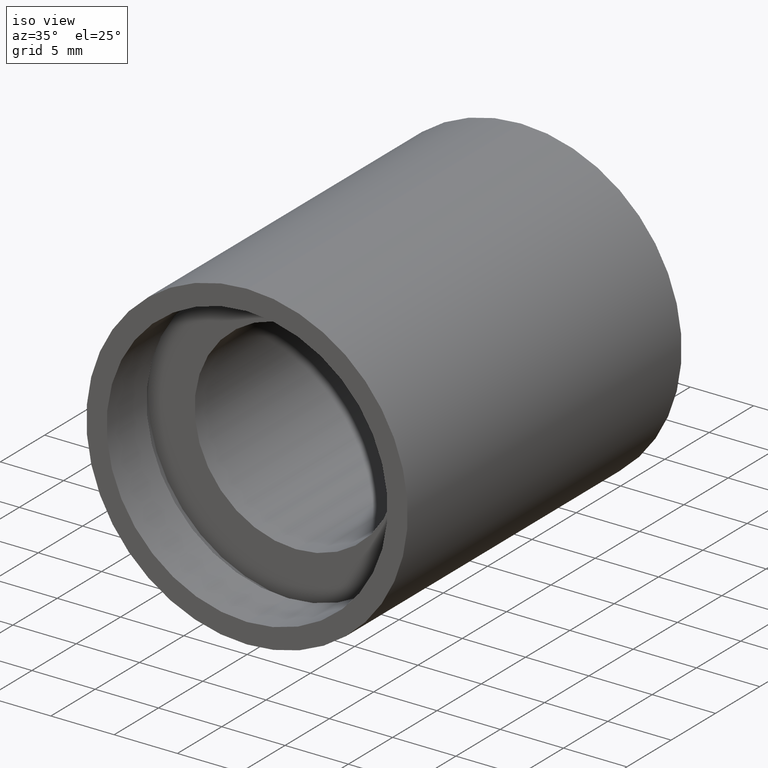
[diagram: clean part render]
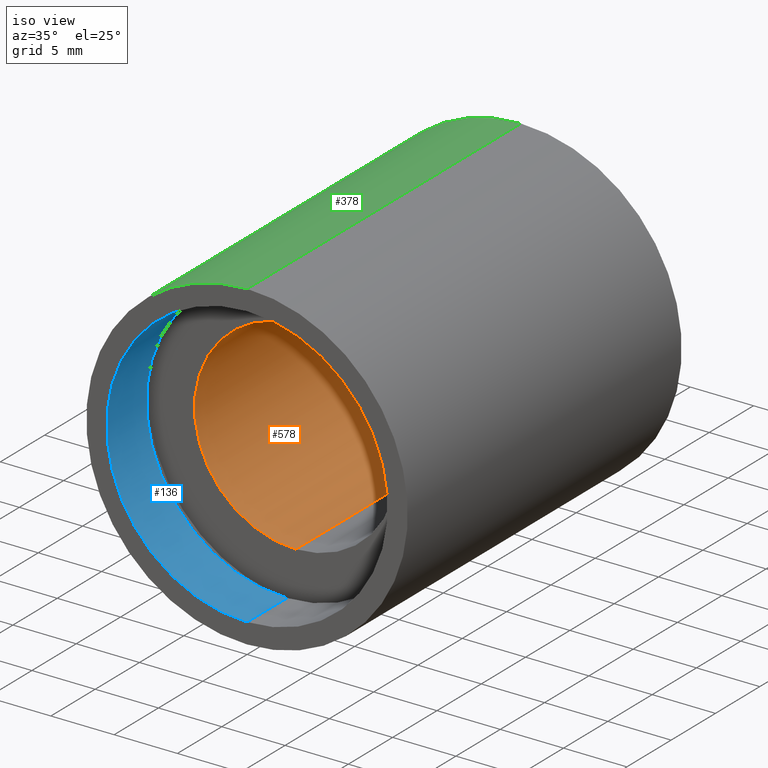
[diagram: same view with three faces highlighted in distinct colors, each labeled with its STEP entity id]
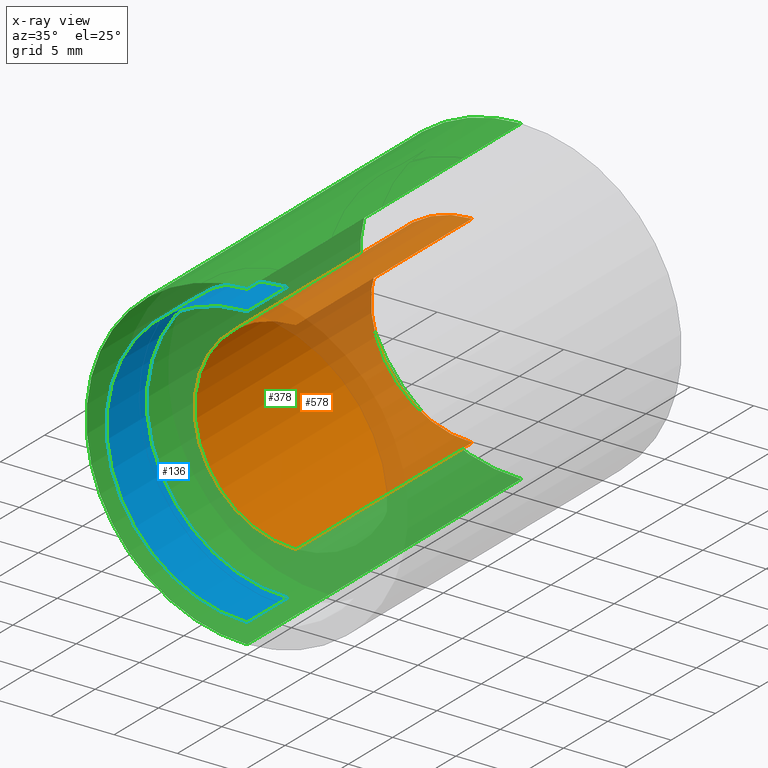
[diagram: x-ray of the same camera — body ghosted, the three highlighted faces saturated]
A machine part, iso view with three faces highlighted in distinct colors.
The next image is the same camera in x-ray (body ghosted, the three faces saturated) — at least one of them is partly hidden behind the body in this view.
Their STEP definitions:

[orange] entity #578 — the highlighted cylindrical surface (partial cylindrical patch) has radius 8 mm, axis along (-0, 1, -0).
#2 = VECTOR ( 'NONE', #29, 1000.000000000000000 ) ;
#29 = DIRECTION ( 'NONE',  ( -0.0000000000000000000, 1.000000000000000000, -0.0000000000000000000 ) ) ;
#39 = CARTESIAN_POINT ( 'NONE',  ( 0.0000000000000000000, 161.3761669434274500, 0.0000000000000000000 ) ) ;
#104 = DIRECTION ( 'NONE',  ( 0.0000000000000000000, 0.0000000000000000000, 1.000000000000000000 ) ) ;
#109 = EDGE_CURVE ( 'NONE', #143, #457, #479, .T. ) ;
#112 = DIRECTION ( 'NONE',  ( -0.0000000000000000000, 1.000000000000000000, -0.0000000000000000000 ) ) ;
#120 = VERTEX_POINT ( 'NONE', #245 ) ;
#143 = VERTEX_POINT ( 'NONE', #586 ) ;
#170 = CARTESIAN_POINT ( 'NONE',  ( 0.0000000000000000000, 5.499999999999976900, 8.000000000000019500 ) ) ;
#176 = EDGE_CURVE ( 'NONE', #457, #120, #501, .T. ) ;
#185 = DIRECTION ( 'NONE',  ( 0.0000000000000000000, 0.0000000000000000000, 1.000000000000000000 ) ) ;
#199 = EDGE_LOOP ( 'NONE', ( #596, #296, #402, #311 ) ) ;
#200 = DIRECTION ( 'NONE',  ( -0.0000000000000000000, 1.000000000000000000, -0.0000000000000000000 ) ) ;
#209 = DIRECTION ( 'NONE',  ( 0.0000000000000000000, 0.0000000000000000000, 1.000000000000000000 ) ) ;
#219 = EDGE_CURVE ( 'NONE', #418, #120, #570, .T. ) ;
#224 = CARTESIAN_POINT ( 'NONE',  ( 9.797174393178849300E-016, 25.39999999999997700, -8.000000000000019500 ) ) ;
#245 = CARTESIAN_POINT ( 'NONE',  ( 0.0000000000000000000, 25.39999999999997700, 8.000000000000019500 ) ) ;
#260 = AXIS2_PLACEMENT_3D ( 'NONE', #39, #529, #185 ) ;
#269 = LINE ( 'NONE', #611, #2 ) ;
#296 = ORIENTED_EDGE ( 'NONE', *, *, #370, .T. ) ;
#311 = ORIENTED_EDGE ( 'NONE', *, *, #176, .F. ) ;
#351 = CARTESIAN_POINT ( 'NONE',  ( 0.0000000000000000000, 161.3761669434274500, 8.000000000000019500 ) ) ;
#370 = EDGE_CURVE ( 'NONE', #143, #418, #269, .T. ) ;
#401 = FACE_OUTER_BOUND ( 'NONE', #199, .T. ) ;
#402 = ORIENTED_EDGE ( 'NONE', *, *, #219, .T. ) ;
#418 = VERTEX_POINT ( 'NONE', #224 ) ;
#422 = VECTOR ( 'NONE', #490, 1000.000000000000000 ) ;
#457 = VERTEX_POINT ( 'NONE', #170 ) ;
#459 = AXIS2_PLACEMENT_3D ( 'NONE', #502, #112, #209 ) ;
#464 = CYLINDRICAL_SURFACE ( 'NONE', #260, 8.000000000000019500 ) ;
#468 = AXIS2_PLACEMENT_3D ( 'NONE', #546, #200, #104 ) ;
#479 = CIRCLE ( 'NONE', #468, 8.000000000000019500 ) ;
#490 = DIRECTION ( 'NONE',  ( -0.0000000000000000000, 1.000000000000000000, -0.0000000000000000000 ) ) ;
#501 = LINE ( 'NONE', #351, #422 ) ;
#502 = CARTESIAN_POINT ( 'NONE',  ( 0.0000000000000000000, 25.39999999999997700, 0.0000000000000000000 ) ) ;
#529 = DIRECTION ( 'NONE',  ( -0.0000000000000000000, 1.000000000000000000, -0.0000000000000000000 ) ) ;
#546 = CARTESIAN_POINT ( 'NONE',  ( 0.0000000000000000000, 5.499999999999976900, 0.0000000000000000000 ) ) ;
#570 = CIRCLE ( 'NONE', #459, 8.000000000000019500 ) ;
#578 = ADVANCED_FACE ( 'NONE', ( #401 ), #464, .F. ) ;
#586 = CARTESIAN_POINT ( 'NONE',  ( 9.797174393178849300E-016, 5.499999999999976900, -8.000000000000019500 ) ) ;
#596 = ORIENTED_EDGE ( 'NONE', *, *, #109, .F. ) ;
#611 = CARTESIAN_POINT ( 'NONE',  ( 9.797174393178849300E-016, 161.3761669434274500, -8.000000000000019500 ) ) ;

[blue] entity #136 — the highlighted cylindrical surface (partial cylindrical patch) has radius 11.1 mm, axis along (-0, 1, -0).
#17 = CIRCLE ( 'NONE', #289, 11.10000000000001900 ) ;
#58 = CARTESIAN_POINT ( 'NONE',  ( 0.0000000000000000000, 161.3761669434274500, 0.0000000000000000000 ) ) ;
#59 = DIRECTION ( 'NONE',  ( -0.0000000000000000000, 1.000000000000000000, -0.0000000000000000000 ) ) ;
#61 = CIRCLE ( 'NONE', #397, 11.10000000000002300 ) ;
#63 = VECTOR ( 'NONE', #91, 1000.000000000000000 ) ;
#68 = VERTEX_POINT ( 'NONE', #478 ) ;
#83 = ORIENTED_EDGE ( 'NONE', *, *, #592, .F. ) ;
#91 = DIRECTION ( 'NONE',  ( -0.0000000000000000000, 1.000000000000000000, -0.0000000000000000000 ) ) ;
#123 = CARTESIAN_POINT ( 'NONE',  ( 0.0000000000000000000, 4.499999999999976000, 0.0000000000000000000 ) ) ;
#125 = CARTESIAN_POINT ( 'NONE',  ( 1.359357947053564500E-015, 161.3761669434274500, -11.10000000000002100 ) ) ;
#126 = CARTESIAN_POINT ( 'NONE',  ( 0.0000000000000000000, 161.3761669434274500, 11.10000000000002100 ) ) ;
#136 = ADVANCED_FACE ( 'NONE', ( #301 ), #341, .F. ) ;
#158 = VECTOR ( 'NONE', #379, 1000.000000000000000 ) ;
#180 = CARTESIAN_POINT ( 'NONE',  ( 0.0000000000000000000, -2.775557561562891400E-014, 11.10000000000002300 ) ) ;
#256 = DIRECTION ( 'NONE',  ( 0.0000000000000000000, 0.0000000000000000000, 1.000000000000000000 ) ) ;
#274 = LINE ( 'NONE', #125, #158 ) ;
#277 = ORIENTED_EDGE ( 'NONE', *, *, #282, .F. ) ;
#278 = EDGE_LOOP ( 'NONE', ( #277, #293, #623, #83 ) ) ;
#282 = EDGE_CURVE ( 'NONE', #336, #515, #61, .T. ) ;
#289 = AXIS2_PLACEMENT_3D ( 'NONE', #123, #560, #463 ) ;
#293 = ORIENTED_EDGE ( 'NONE', *, *, #558, .T. ) ;
#301 = FACE_OUTER_BOUND ( 'NONE', #278, .T. ) ;
#304 = DIRECTION ( 'NONE',  ( -0.0000000000000000000, 1.000000000000000000, -0.0000000000000000000 ) ) ;
#307 = CARTESIAN_POINT ( 'NONE',  ( 0.0000000000000000000, -2.775557561562891400E-014, 0.0000000000000000000 ) ) ;
#336 = VERTEX_POINT ( 'NONE', #364 ) ;
#341 = CYLINDRICAL_SURFACE ( 'NONE', #536, 11.10000000000002100 ) ;
#364 = CARTESIAN_POINT ( 'NONE',  ( 1.359357947053564900E-015, -2.775557561562891400E-014, -11.10000000000002300 ) ) ;
#379 = DIRECTION ( 'NONE',  ( -0.0000000000000000000, 1.000000000000000000, -0.0000000000000000000 ) ) ;
#397 = AXIS2_PLACEMENT_3D ( 'NONE', #307, #304, #554 ) ;
#420 = EDGE_CURVE ( 'NONE', #68, #535, #17, .T. ) ;
#463 = DIRECTION ( 'NONE',  ( 0.0000000000000000000, 0.0000000000000000000, 1.000000000000000000 ) ) ;
#475 = CARTESIAN_POINT ( 'NONE',  ( 0.0000000000000000000, 4.499999999999976000, 11.10000000000001900 ) ) ;
#478 = CARTESIAN_POINT ( 'NONE',  ( 1.359357947053564500E-015, 4.499999999999976000, -11.10000000000001900 ) ) ;
#511 = LINE ( 'NONE', #126, #63 ) ;
#515 = VERTEX_POINT ( 'NONE', #180 ) ;
#535 = VERTEX_POINT ( 'NONE', #475 ) ;
#536 = AXIS2_PLACEMENT_3D ( 'NONE', #58, #59, #256 ) ;
#554 = DIRECTION ( 'NONE',  ( 0.0000000000000000000, 0.0000000000000000000, 1.000000000000000000 ) ) ;
#558 = EDGE_CURVE ( 'NONE', #336, #68, #274, .T. ) ;
#560 = DIRECTION ( 'NONE',  ( -0.0000000000000000000, 1.000000000000000000, -0.0000000000000000000 ) ) ;
#592 = EDGE_CURVE ( 'NONE', #515, #535, #511, .T. ) ;
#623 = ORIENTED_EDGE ( 'NONE', *, *, #420, .T. ) ;

[green] entity #378 — the highlighted cylindrical surface (partial cylindrical patch) has radius 12.7 mm, axis along (-0, 1, -0).
#28 = DIRECTION ( 'NONE',  ( -0.0000000000000000000, 1.000000000000000000, -0.0000000000000000000 ) ) ;
#30 = CARTESIAN_POINT ( 'NONE',  ( 0.0000000000000000000, 161.3761669434274500, 12.70000000000001900 ) ) ;
#74 = CARTESIAN_POINT ( 'NONE',  ( 1.555301434917140800E-015, 30.89999999999998400, -12.70000000000001900 ) ) ;
#96 = DIRECTION ( 'NONE',  ( -0.0000000000000000000, 1.000000000000000000, -0.0000000000000000000 ) ) ;
#103 = DIRECTION ( 'NONE',  ( 0.0000000000000000000, 0.0000000000000000000, 1.000000000000000000 ) ) ;
#130 = LINE ( 'NONE', #366, #582 ) ;
#139 = CYLINDRICAL_SURFACE ( 'NONE', #513, 12.70000000000001900 ) ;
#141 = CIRCLE ( 'NONE', #335, 12.70000000000001900 ) ;
#156 = VECTOR ( 'NONE', #28, 1000.000000000000000 ) ;
#161 = VERTEX_POINT ( 'NONE', #347 ) ;
#167 = ORIENTED_EDGE ( 'NONE', *, *, #467, .T. ) ;
#173 = DIRECTION ( 'NONE',  ( -0.0000000000000000000, 1.000000000000000000, -0.0000000000000000000 ) ) ;
#191 = CARTESIAN_POINT ( 'NONE',  ( 1.555301434917140800E-015, -2.775557561562891400E-014, -12.70000000000001900 ) ) ;
#223 = ORIENTED_EDGE ( 'NONE', *, *, #598, .T. ) ;
#233 = EDGE_LOOP ( 'NONE', ( #318, #223, #167, #284 ) ) ;
#234 = DIRECTION ( 'NONE',  ( 0.0000000000000000000, 0.0000000000000000000, 1.000000000000000000 ) ) ;
#235 = DIRECTION ( 'NONE',  ( -0.0000000000000000000, 1.000000000000000000, -0.0000000000000000000 ) ) ;
#249 = FACE_OUTER_BOUND ( 'NONE', #233, .T. ) ;
#272 = CARTESIAN_POINT ( 'NONE',  ( 0.0000000000000000000, 30.89999999999998400, 0.0000000000000000000 ) ) ;
#284 = ORIENTED_EDGE ( 'NONE', *, *, #579, .F. ) ;
#286 = CARTESIAN_POINT ( 'NONE',  ( 0.0000000000000000000, -2.775557561562891400E-014, 0.0000000000000000000 ) ) ;
#316 = CARTESIAN_POINT ( 'NONE',  ( 0.0000000000000000000, -2.775557561562891400E-014, 12.70000000000001900 ) ) ;
#318 = ORIENTED_EDGE ( 'NONE', *, *, #326, .F. ) ;
#324 = AXIS2_PLACEMENT_3D ( 'NONE', #272, #235, #234 ) ;
#326 = EDGE_CURVE ( 'NONE', #602, #452, #130, .T. ) ;
#335 = AXIS2_PLACEMENT_3D ( 'NONE', #286, #96, #103 ) ;
#347 = CARTESIAN_POINT ( 'NONE',  ( 0.0000000000000000000, 30.89999999999998400, 12.70000000000001900 ) ) ;
#366 = CARTESIAN_POINT ( 'NONE',  ( 1.555301434917140800E-015, 161.3761669434274500, -12.70000000000001900 ) ) ;
#368 = DIRECTION ( 'NONE',  ( -0.0000000000000000000, 1.000000000000000000, -0.0000000000000000000 ) ) ;
#376 = VERTEX_POINT ( 'NONE', #316 ) ;
#378 = ADVANCED_FACE ( 'NONE', ( #249 ), #139, .T. ) ;
#452 = VERTEX_POINT ( 'NONE', #74 ) ;
#467 = EDGE_CURVE ( 'NONE', #376, #161, #476, .T. ) ;
#476 = LINE ( 'NONE', #30, #156 ) ;
#512 = CARTESIAN_POINT ( 'NONE',  ( 0.0000000000000000000, 161.3761669434274500, 0.0000000000000000000 ) ) ;
#513 = AXIS2_PLACEMENT_3D ( 'NONE', #512, #368, #604 ) ;
#564 = CIRCLE ( 'NONE', #324, 12.70000000000001900 ) ;
#579 = EDGE_CURVE ( 'NONE', #452, #161, #564, .T. ) ;
#582 = VECTOR ( 'NONE', #173, 1000.000000000000000 ) ;
#598 = EDGE_CURVE ( 'NONE', #602, #376, #141, .T. ) ;
#602 = VERTEX_POINT ( 'NONE', #191 ) ;
#604 = DIRECTION ( 'NONE',  ( 0.0000000000000000000, 0.0000000000000000000, 1.000000000000000000 ) ) ;